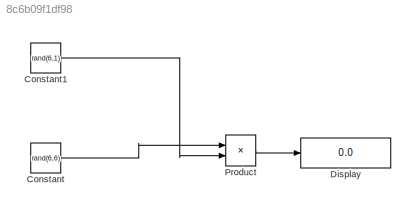
MODEL slx_8c6b09f1df98
KIND model
CONFIG AbsTol = auto
CONFIG EnableMultiTasking = off
CONFIG FixedStep = auto
CONFIG MaxStep = auto
CONFIG MinStep = auto
CONFIG RelTol = 1e-3
CONFIG SampleTimeConstraint = Unconstrained
CONFIG SolverName = VariableStepAuto
CONFIG StartTime = 0.0
CONFIG StopTime = 10.0
BLOCK [Constant] Constant
  Value = rand(6,6)
BLOCK [Constant] Constant1
  Value = rand(6,1)
BLOCK [Display] Display
  Decimation = 1
  Ports = [1]
BLOCK [Product] Product
  Multiplication = Matrix(*)
  Ports = [2, 1]
LINE Constant1:1 -> Product:2
LINE Constant:1 -> Product:1
LINE Product:1 -> Display:1
